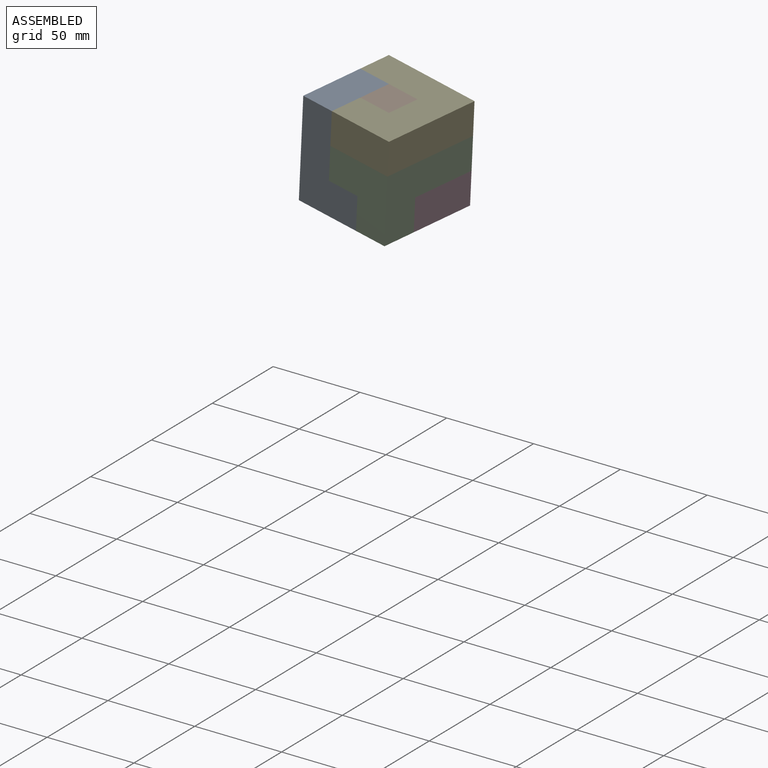
[diagram: assembled view]
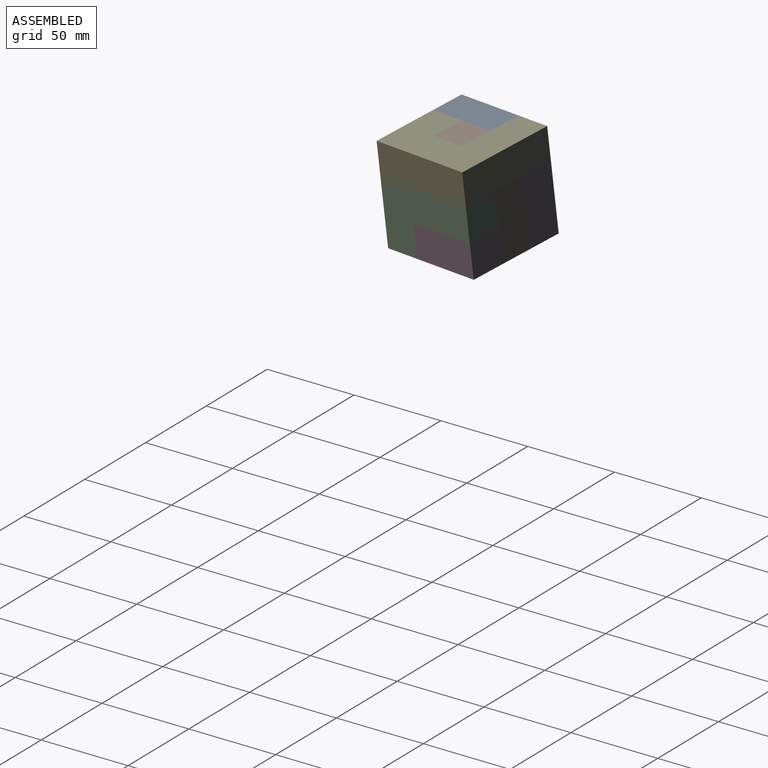
[diagram: assembled view, second angle]
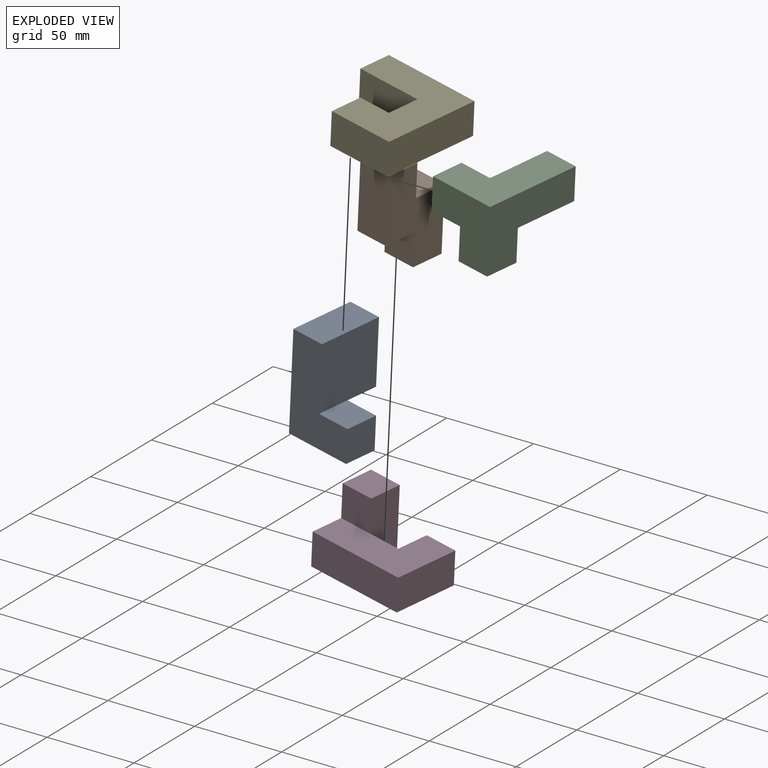
[diagram: exploded view]
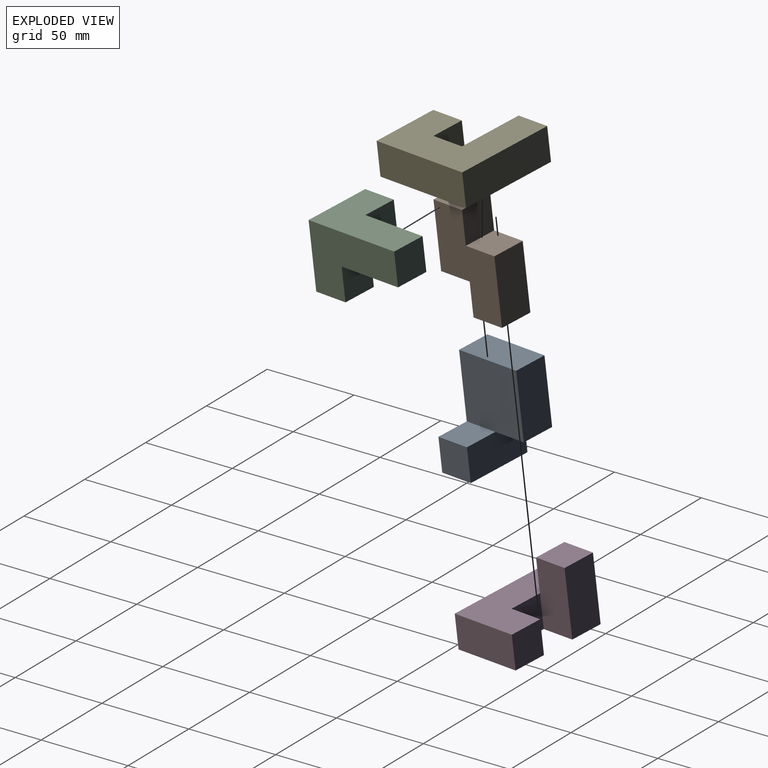
[diagram: exploded view, second angle]
ASSEMBLY  parts=5 mates=4
PART A: 10 faces, bbox 57.2x38.1x38.1 mm
  f0: plane 38.1x19.05mm, normal (0,0,-1), area 725.8mm2, adj f3,f4,f6,f7,f8
  f1: plane 38.1x38.1mm, normal (0,1,0), area 1451.6mm2, adj f2,f5,f6,f8,f9
  f2: plane 38.1x19.05mm, normal (-1,0,0), area 725.8mm2, adj f1,f3,f5,f9
  f3: plane 57.15x38.1mm, normal (0,-1,0), area 1814.5mm2, adj f0,f2,f4,f5,f8,f9
  f4: plane 38.1x19.05mm, normal (1,0,0), area 725.8mm2, adj f0,f3,f5,f7
  f5: plane 57.15x38.1mm, normal (0,0,1), area 1451.6mm2, adj f1,f2,f3,f4,f6,f7
  f6: plane 19.05x19.05mm, normal (-1,0,0), area 362.9mm2, adj f0,f1,f5,f7
  f7: plane 19.05x19.05mm, normal (0,1,0), area 362.9mm2, adj f0,f4,f5,f6
  f8: plane 19.05x19.05mm, normal (1,0,0), area 362.9mm2, adj f0,f1,f3,f9
  f9: plane 38.1x19.05mm, normal (0,0,-1), area 725.8mm2, adj f1,f2,f3,f8
PART B: 10 faces, bbox 19.1x57.2x38.1 mm
  f0: plane 57.15x38.1mm, normal (1,0,0), area 1451.6mm2, adj f1,f3,f4,f5,f6,f7,f8,f9
  f1: plane 38.1x19.05mm, normal (0,0,1), area 725.8mm2, adj f0,f2,f5,f7
  f2: plane 57.15x38.1mm, normal (-1,0,0), area 1451.6mm2, adj f1,f3,f4,f5,f6,f7,f8,f9
  f3: plane 38.1x19.05mm, normal (0,0,-1), area 725.8mm2, adj f0,f2,f4,f9
  f4: plane 19.05x19.05mm, normal (0,-1,0), area 362.9mm2, adj f0,f2,f3,f6
  f5: plane 19.05x19.05mm, normal (0,1,0), area 362.9mm2, adj f0,f1,f2,f8
  f6: plane 19.05x19.05mm, normal (0,0,-1), area 362.9mm2, adj f0,f2,f4,f7
  f7: plane 19.05x19.05mm, normal (0,-1,0), area 362.9mm2, adj f0,f1,f2,f6
  f8: plane 19.05x19.05mm, normal (0,0,1), area 362.9mm2, adj f0,f2,f5,f9
  f9: plane 19.05x19.05mm, normal (0,1,0), area 362.9mm2, adj f0,f2,f3,f8
PART C: 11 faces, bbox 38.1x38.1x57.2 mm
  f0: plane 19.05x19.05mm, normal (1,0,0), area 362.9mm2, adj f1,f5,f7,f8
  f1: plane 38.1x38.1mm, normal (0,0,1), area 1088.7mm2, adj f0,f2,f5,f6,f8,f10
  f2: plane 57.15x38.1mm, normal (-1,0,0), area 1451.6mm2, adj f1,f3,f5,f6,f7,f8
  f3: plane 19.05x19.05mm, normal (0,0,-1), area 362.9mm2, adj f2,f4,f5,f6
  f4: plane 37.61x19.05mm, normal (1,0,0), area 716.5mm2, adj f3,f5,f6,f9
  f5: plane 57.15x38.1mm, normal (0,-1,0), area 1098mm2, adj f0,f1,f2,f3,f4,f7,f9,f10
  f6: plane 57.15x38.1mm, normal (0,1,0), area 1460.9mm2, adj f1,f2,f3,f4,f9,f10
  f7: plane 19.05x19.05mm, normal (0,0,-1), area 362.9mm2, adj f0,f2,f5,f8
  f8: plane 19.05x19.05mm, normal (0,-1,0), area 362.9mm2, adj f0,f1,f2,f7
  f9: plane 19.05x19.05mm, normal (0,0,-1), area 362.9mm2, adj f4,f5,f6,f10
  f10: plane 19.54x19.05mm, normal (1,0,0), area 372.2mm2, adj f1,f5,f6,f9
PART D: 12 faces, bbox 57.2x38.1x38.1 mm
  f0: plane 57.15x38.1mm, normal (0,0,1), area 1451.5mm2, adj f1,f2,f3,f4,f8,f9,f10
  f1: plane 19.05x19.04mm, normal (0,-1,0), area 362.8mm2, adj f0,f5,f6,f8
  f2: plane 57.15x19.05mm, normal (0,1,0), area 1088.7mm2, adj f0,f3,f4,f5
  f3: plane 38.1x19.05mm, normal (-1,0,0), area 725.8mm2, adj f0,f2,f5,f9
  f4: plane 38.1x38.1mm, normal (1,0,0), area 1088.7mm2, adj f0,f2,f5,f7,f10,f11
  f5: plane 57.15x38.1mm, normal (0,0,-1), area 1814.6mm2, adj f1,f2,f3,f4,f6,f7,f8,f9
  f6: plane 38.1x19.05mm, normal (-1,0,0), area 725.8mm2, adj f1,f5,f7,f10,f11
  f7: plane 38.1x19.06mm, normal (0,-1,0), area 726.2mm2, adj f4,f5,f6,f11
  f8: plane 19.05x19.05mm, normal (1,0,0), area 362.9mm2, adj f0,f1,f5,f9
  f9: plane 19.05x19.04mm, normal (0,-1,0), area 362.8mm2, adj f0,f3,f5,f8
  f10: plane 19.06x19.05mm, normal (0,1,0), area 363.1mm2, adj f0,f4,f6,f11
  f11: plane 19.06x19.05mm, normal (0,0,1), area 363.1mm2, adj f4,f6,f7,f10
PART E: 10 faces, bbox 19.1x57.2x57.2 mm
  f0: plane 57.15x19.05mm, normal (0,1,0), area 1088.7mm2, adj f1,f7,f8,f9
  f1: plane 38.1x19.05mm, normal (0,0,1), area 725.8mm2, adj f0,f2,f8,f9
  f2: plane 19.05x19.05mm, normal (0,-1,0), area 362.9mm2, adj f1,f3,f8,f9
  f3: plane 19.05x19.05mm, normal (0,0,-1), area 362.9mm2, adj f2,f4,f8,f9
  f4: plane 19.05x19.05mm, normal (0,-1,0), area 362.9mm2, adj f3,f5,f8,f9
  f5: plane 38.1x19.05mm, normal (0,0,1), area 725.8mm2, adj f4,f6,f8,f9
  f6: plane 19.05x19.05mm, normal (0,-1,0), area 362.9mm2, adj f5,f7,f8,f9
  f7: plane 57.15x19.05mm, normal (0,0,-1), area 1088.7mm2, adj f0,f6,f8,f9
  f8: plane 57.15x57.15mm, normal (1,0,0), area 2177.4mm2, adj f0,f1,f2,f3,f4,f5,f6,f7
  f9: plane 57.15x57.15mm, normal (-1,0,0), area 2177.4mm2, adj f0,f1,f2,f3,f4,f5,f6,f7
PLACE A rot(axis=(0.58,0.54,-0.61),130.4deg) t=(-121.23,100.83,168.58)mm
PLACE B rot(axis=(-0.03,-0.72,0.69),169.4deg) t=(-113.26,112.02,166.92)mm
PLACE C rot(axis=(0.58,0.54,-0.61),130.4deg) t=(-72.11,97.93,165.75)mm
PLACE D rot(axis=(0.04,-0.02,1),170.1deg) t=(-104.69,120.53,147.53)mm
PLACE E rot(axis=(0.58,0.54,-0.61),130.4deg) t=(-94.16,97.61,202.78)mm
MATE fastened E.f5 <-> B.f6  axis (-0.17,-0.98,-0.04) through (-85.5,112.44,202.89)mm
MATE fastened B.f9 <-> D.f5  axis (-0.08,0.06,-0.99) through (-109.02,118.91,147.81)mm
MATE fastened C.f5 <-> B.f2  axis (-0.98,0.17,0.09) through (-85.41,133.35,165.78)mm
MATE fastened A.f2 <-> B.f7  axis (0.08,-0.06,0.99) through (-104.19,115.66,204.66)mm
